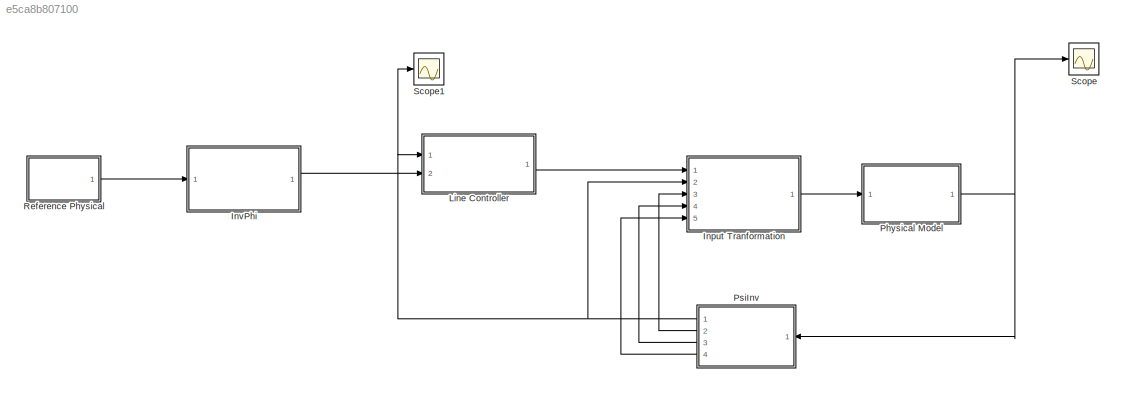
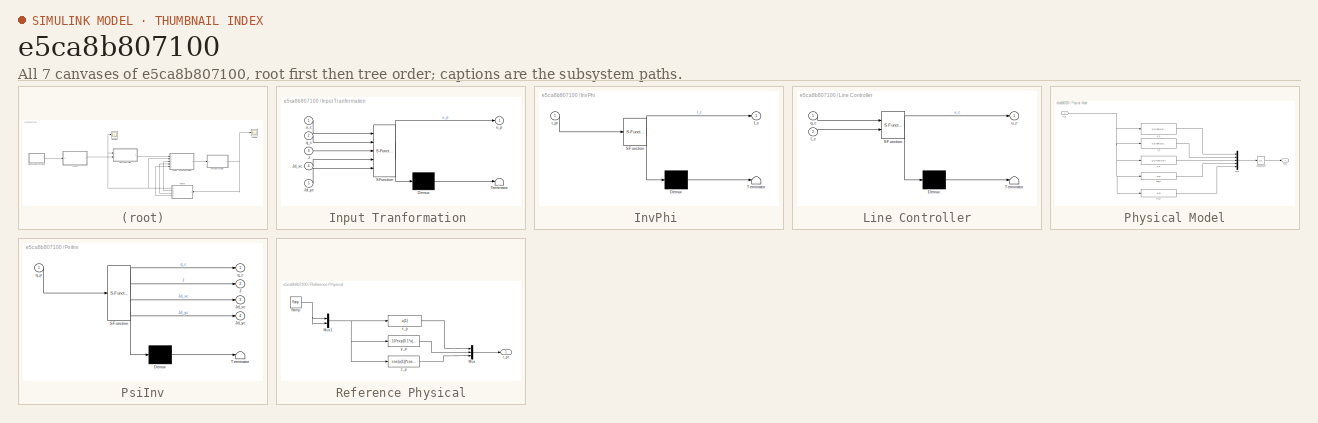
[diagram: thumbnail index - all 7 canvases of the model, root first then tree order]
MODEL slx_e5ca8b807100
KIND model
CONFIG AbsTol = auto
CONFIG FixedStep = auto
CONFIG MaxStep = auto
CONFIG MinStep = auto
CONFIG RelTol = 1e-3
CONFIG SampleTimeConstraint = Unconstrained
CONFIG Solver = ode45
CONFIG SolverMode = Auto
CONFIG SolverName = ode45
CONFIG StartTime = 0.0
CONFIG StopTime = 6.5
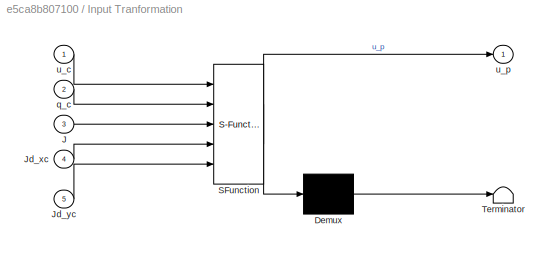
BLOCK [SubSystem] Input Tranformation 
  ErrorFcn = Stateflow.Translate.translate
  PermitHierarchicalResolution = ExplicitOnly
  Ports = [5, 1]
  RequestExecContextInheritance = off
  SFBlockType = MATLAB Function
  TreatAsAtomicUnit = on
BLOCK [Demux] Input Tranformation / Demux 
  Outputs = 1
  Ports = [1, 1]
BLOCK [S-Function] Input Tranformation / SFunction 
  EnableBusSupport = on
  FunctionName = sf_sfun
  PortCounts = [5 2]
  Ports = [5, 2]
  Tag = Stateflow S-Function simulation_sufc_new 2
BLOCK [Terminator] Input Tranformation / Terminator 
BLOCK [Inport] Input Tranformation /J
  IconDisplay = Port number
  Port = 3
BLOCK [Inport] Input Tranformation /Jd_xc
  IconDisplay = Port number
  Port = 4
BLOCK [Inport] Input Tranformation /Jd_yc
  IconDisplay = Port number
  Port = 5
BLOCK [Inport] Input Tranformation /q_c
  IconDisplay = Port number
  Port = 2
BLOCK [Inport] Input Tranformation /u_c
  IconDisplay = Port number
BLOCK [Outport] Input Tranformation /u_p
  IconDisplay = Port number
BLOCK [SubSystem] InvPhi 
  ErrorFcn = Stateflow.Translate.translate
  PermitHierarchicalResolution = ExplicitOnly
  Ports = [1, 1]
  RequestExecContextInheritance = off
  SFBlockType = MATLAB Function
  TreatAsAtomicUnit = on
BLOCK [Demux] InvPhi / Demux 
  Outputs = 1
  Ports = [1, 1]
BLOCK [S-Function] InvPhi / SFunction 
  EnableBusSupport = on
  FunctionName = sf_sfun
  PortCounts = [1 2]
  Ports = [1, 2]
  Tag = Stateflow S-Function simulation_sufc_new 4
BLOCK [Terminator] InvPhi / Terminator 
BLOCK [Outport] InvPhi /I_c
  IconDisplay = Port number
BLOCK [Inport] InvPhi /r_pr
  IconDisplay = Port number
BLOCK [SubSystem] Line Controller
  ErrorFcn = Stateflow.Translate.translate
  PermitHierarchicalResolution = ExplicitOnly
  Ports = [2, 1]
  RequestExecContextInheritance = off
  SFBlockType = MATLAB Function
  TreatAsAtomicUnit = on
BLOCK [Demux] Line Controller/ Demux 
  Outputs = 1
  Ports = [1, 1]
BLOCK [S-Function] Line Controller/ SFunction 
  EnableBusSupport = on
  FunctionName = sf_sfun
  PortCounts = [2 2]
  Ports = [2, 2]
  Tag = Stateflow S-Function simulation_sufc_new 3
BLOCK [Terminator] Line Controller/ Terminator 
BLOCK [Inport] Line Controller/I_c
  IconDisplay = Port number
  Port = 2
BLOCK [Inport] Line Controller/q_c
  IconDisplay = Port number
BLOCK [Outport] Line Controller/u_c
  IconDisplay = Port number
BLOCK [SubSystem] Physical Model
  Ports = [1, 1]
  RequestExecContextInheritance = off
BLOCK [Integrator] Physical Model/Integrator
  InitialCondition = [-0.5 10 2.5 pi/1.5 -pi/15]'
  LowerSaturationLimit = -1000
  Ports = [1, 1]
  UpperSaturationLimit = 1000
BLOCK [Mux] Physical Model/Mux
  DisplayOption = bar
  Inputs = 5
  Ports = [5, 1]
BLOCK [Fcn] Physical Model/phi_p
  Expr = u(2)
BLOCK [Outport] Physical Model/q_p
  IconDisplay = Port number
BLOCK [Fcn] Physical Model/th_p
  Expr = u(3)
BLOCK [Inport] Physical Model/u_p
  IconDisplay = Port number
BLOCK [Fcn] Physical Model/x_p 
  Expr = u(1)*sin(u(3))*cos(u(2))
BLOCK [Fcn] Physical Model/y_p
  Expr = u(1)*sin(u(3))*sin(u(2))
BLOCK [Fcn] Physical Model/z_p
  Expr = u(1)*cos(u(3))
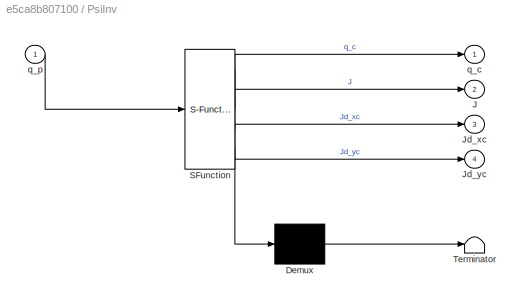
BLOCK [SubSystem] PsiInv
  ErrorFcn = Stateflow.Translate.translate
  PermitHierarchicalResolution = ExplicitOnly
  Ports = [1, 4]
  RequestExecContextInheritance = off
  SFBlockType = MATLAB Function
  TreatAsAtomicUnit = on
BLOCK [Demux] PsiInv/ Demux 
  Outputs = 1
  Ports = [1, 1]
BLOCK [S-Function] PsiInv/ SFunction 
  EnableBusSupport = on
  FunctionName = sf_sfun
  PortCounts = [1 5]
  Ports = [1, 5]
  Tag = Stateflow S-Function simulation_sufc_new 1
BLOCK [Terminator] PsiInv/ Terminator 
BLOCK [Outport] PsiInv/J
  IconDisplay = Port number
  Port = 2
BLOCK [Outport] PsiInv/Jd_xc
  IconDisplay = Port number
  Port = 3
BLOCK [Outport] PsiInv/Jd_yc
  IconDisplay = Port number
  Port = 4
BLOCK [Outport] PsiInv/q_c
  IconDisplay = Port number
BLOCK [Inport] PsiInv/q_p
  IconDisplay = Port number
BLOCK [SubSystem] Reference Physical
  Ports = [0, 1]
  RequestExecContextInheritance = off
BLOCK [Mux] Reference Physical/Mux
  DisplayOption = bar
  Inputs = 3
  Ports = [3, 1]
BLOCK [Mux] Reference Physical/Mux1
  DisplayOption = bar
  Inputs = 2
  Ports = [2, 1]
BLOCK [Reference] Reference Physical/Ramp  REF=simulink/Sources/Ramp
  Ports = [0, 1]
  SourceBlock = simulink/Sources/Ramp
  SourceType = Ramp
  VectorParams1D = on
  X0 = 0
  slope = 1
  start = 0
BLOCK [Outport] Reference Physical/r_pr
  IconDisplay = Port number
BLOCK [Fcn] Reference Physical/x_p
  Expr = u(1)
BLOCK [Fcn] Reference Physical/y_p
  Expr = 10*exp(0.1*u(2))
BLOCK [Fcn] Reference Physical/z_p
  Expr = cos(u(1))*cos(u(2))
BLOCK [Scope] Scope
  Floating = off
  NumInputPorts = 1
  Ports = [1]
  SaveName = qp
  SaveToWorkspace = on
  YMax = 550000
  YMin = -25000
  ZoomMode = xonly
BLOCK [Scope] Scope1
  Floating = off
  NumInputPorts = 1
  Ports = [1]
  SaveName = qc
  SaveToWorkspace = on
  YMax = 5.5
  YMin = 0
LINE Input Tranformation :1 -> Physical Model:1
LINE InvPhi :1 -> Line Controller:2
LINE Line Controller:1 -> Input Tranformation :1
LINE Physical Model/Integrator:1 -> Physical Model/q_p:1
LINE Physical Model/Mux:1 -> Physical Model/Integrator:1
LINE Physical Model/phi_p:1 -> Physical Model/Mux:4
LINE Physical Model/th_p:1 -> Physical Model/Mux:5
NET Physical Model/u_p:1 -> Physical Model/phi_p:1, Physical Model/th_p:1, Physical Model/x_p :1, Physical Model/y_p:1, Physical Model/z_p:1
LINE Physical Model/x_p :1 -> Physical Model/Mux:1
LINE Physical Model/y_p:1 -> Physical Model/Mux:2
LINE Physical Model/z_p:1 -> Physical Model/Mux:3
NET Physical Model:1 -> PsiInv:1, Scope:1
NET PsiInv:1 -> Input Tranformation :2, Line Controller:1, Scope1:1
LINE PsiInv:2 -> Input Tranformation :3
LINE PsiInv:3 -> Input Tranformation :4
LINE PsiInv:4 -> Input Tranformation :5
NET Reference Physical/Mux1:1 -> Reference Physical/x_p:1, Reference Physical/y_p:1, Reference Physical/z_p:1
LINE Reference Physical/Mux:1 -> Reference Physical/r_pr:1
NET Reference Physical/Ramp:1 -> Reference Physical/Mux1:1, Reference Physical/Mux1:2
LINE Reference Physical/x_p:1 -> Reference Physical/Mux:1
LINE Reference Physical/y_p:1 -> Reference Physical/Mux:2
LINE Reference Physical/z_p:1 -> Reference Physical/Mux:3
LINE Reference Physical:1 -> InvPhi :1
note: NET lines group one-source signal fan-out (src -> all destinations, sorted); 1:1 wires keep LINE
CHART PsiInv states=1 transitions=1
  STATE_LABEL 'eML_blk_kernel()'
  STATE_LABEL 'SCRIPT:\nfunction [q_c,J,Jd_xc,Jd_yc]  = PsiInv(q_p)\n\n    % Find canonical cordinates\n    x_c = q_p(1);\n    y_c = 10*log(q_p(2)/10);\n    r_c = zeros(3,1);\n    r_c(1,1) = x_c;\n    r_c(2,1) = y_c;\n    r_c(3,1) = q_p(3)-cos(x_c)*cos(y_c);\n    \n    \n    % Find Jacobian and its derivatices\n    J = [1 0 0; 0 exp(0.1*y_c) 0; -sin(x_c)*cos(y_c) -cos(x_c)*sin(y_c) 1];\n    Jd_xc = [0 0 0; 0 0 0; -cos(x_c)*co...<+487ch>'
CHART Input Tranformation
 states=1 transitions=1
  STATE_LABEL 'eML_blk_kernel()'
  STATE_LABEL "SCRIPT:\nfunction u_p = M(u_c,q_c,J,Jd_xc,Jd_yc)\n    \n    % Initialization\n    C = zeros(2,3);\n    D = eye(2);\n    M = eye(3);\n    \n    % Construct needed elements of Cartesian tensor\n    e12=[1 0 0]'*[0 1 0];\n    e21=[0 1 0]'*[1 0 0];\n    e33=[0 0 1]'*[0 0 1];\n    \n    % Get canonical angles\n    th_c = q_c(5);\n    phi_c = q_c(4);    \n    \n    % Construct the vector cc and its derivatives\n    cc = ...<+1313ch>"
CHART Line Controller states=1 transitions=1
  STATE_LABEL 'eML_blk_kernel()'
  STATE_LABEL "SCRIPT:\nfunction u_c = LineCon(q_c,I_c)\n\n    K1 = -1000*[5 0 0; 0 5 0;0 0 10];     \n    K2 = -320*[1 0 0; 0 1 0;0 0 0];    \n    \n    r_c = [q_c(1); q_c(2); q_c(3)];\n    \n    null_Ic= null([1 1 0]);\n    nlat = null_Ic(:,1);\n    nlon = null_Ic(:,2);\n        \n    v = K1*(nlon*nlon'+nlat*nlat')*(r_c - [0;0;1]) + K2*(cross(nlon,nlat));\n\n    v=1.7*v/norm(v);\n    \n    u_c = [norm(v); atan2(v(2),v(1));aco...<+26ch>"
CHART InvPhi
 states=1 transitions=1
  STATE_LABEL 'eML_blk_kernel()'
  STATE_LABEL 'SCRIPT:\nfunction I_c  = Init(r_pr)\n\n    x_c = r_pr(1);\n    y_c = 10*log(r_pr(2)/10);\n    I_c = zeros(3,1);\n    I_c(1,1) = x_c;\n    I_c(2,1) = y_c;\n    I_c(3,1) = r_pr(3)-cos(x_c)*cos(y_c);   \nend\n'
